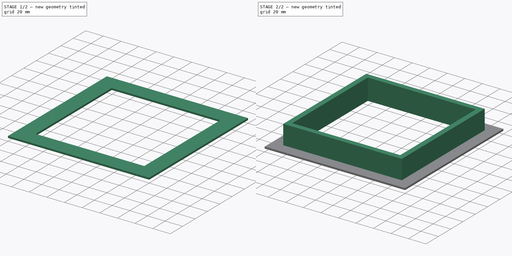
[diagram: build sequence overview — one tinted view per stage of 2, left to right]
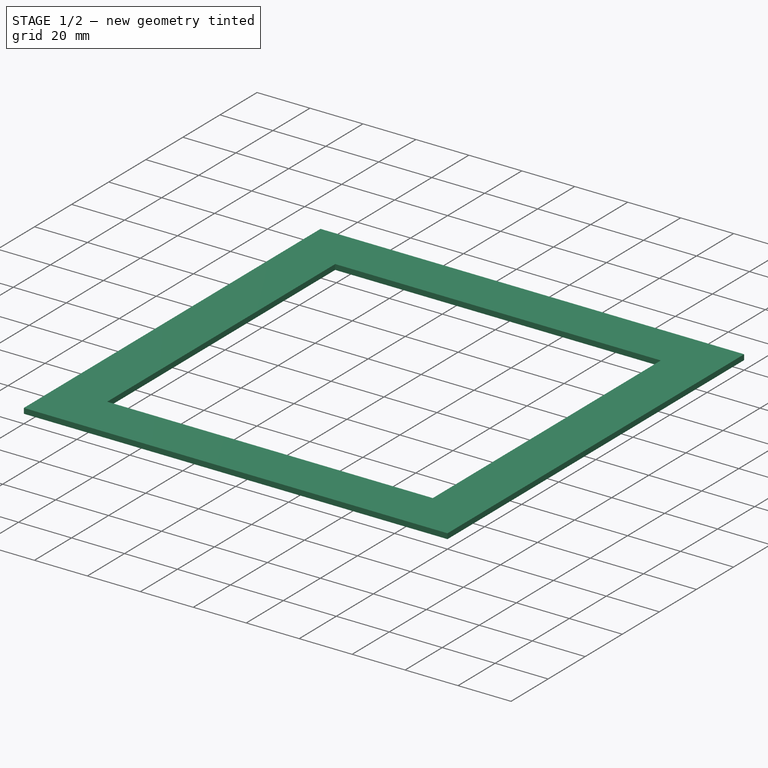
[diagram: stage 1 of 2 — iso view after this stage's code; geometry added in this stage tinted green]
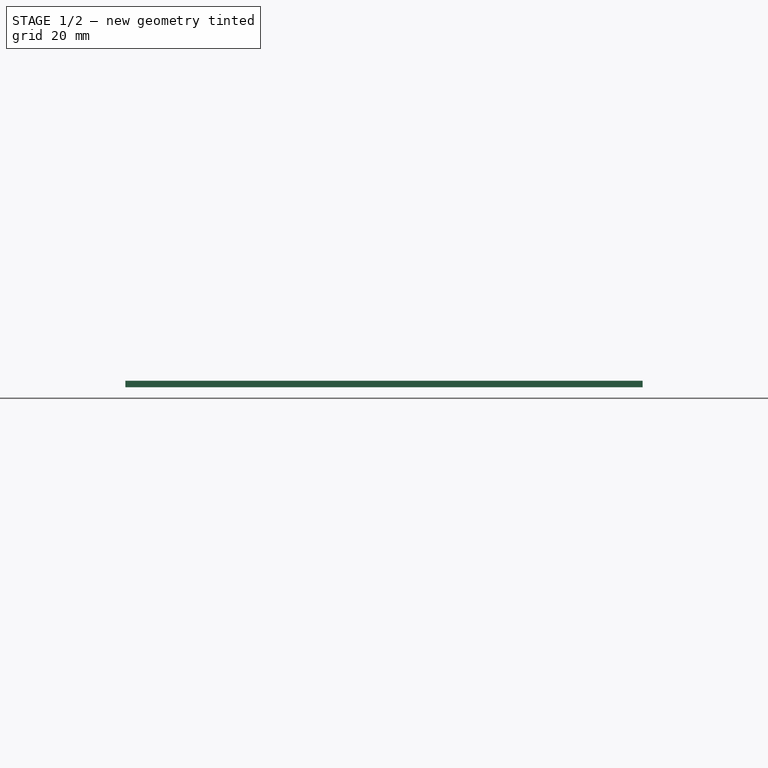
[diagram: stage 1 of 2 — front view after this stage's code; geometry added in this stage tinted green]
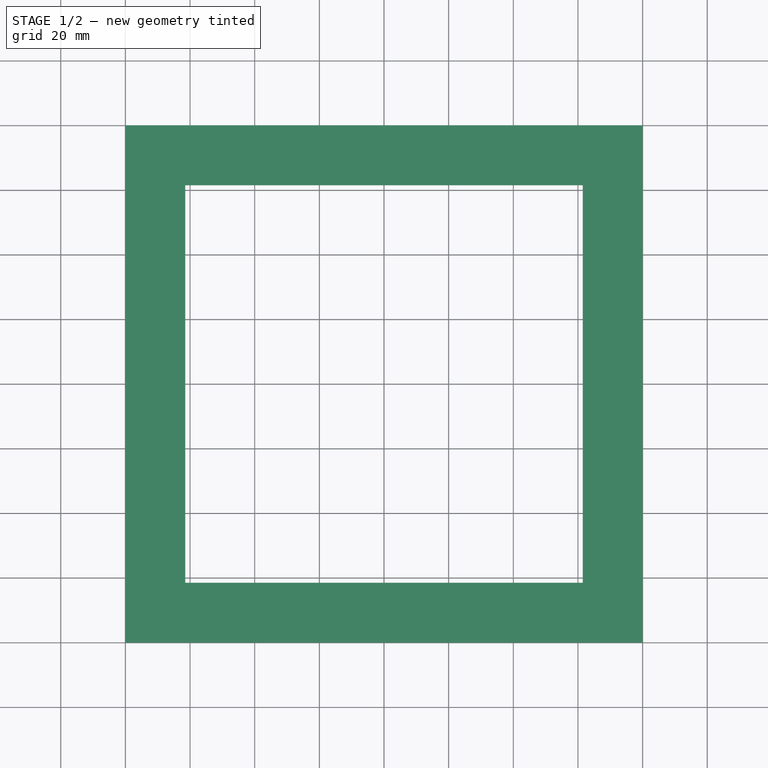
[diagram: stage 1 of 2 — top view after this stage's code; geometry added in this stage tinted green]
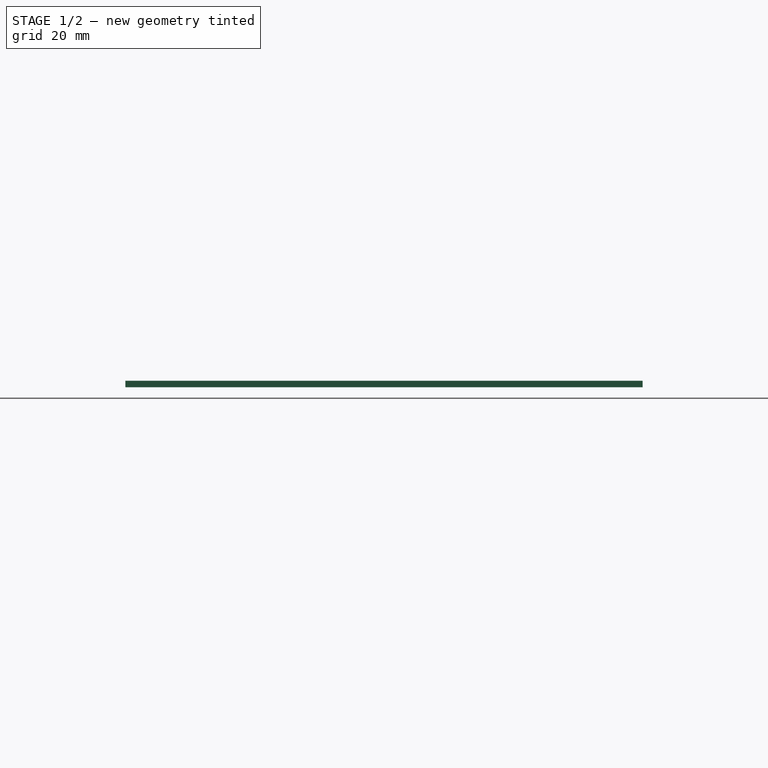
[diagram: stage 1 of 2 — right view after this stage's code; geometry added in this stage tinted green]
FCSTD DOCUMENT  (FreeCAD 0.14R3703 (Git))
Label: base_cristal_lluis
License: CC-BY 3.0
LicenseURL: http://creativecommons.org/licenses/by/3.0/
objects: Sketcher::SketchObject×2, PartDesign::Pad×2, Part::Feature×1
note: 7 computed .brp shape members not serialized (recipe doc carries the construction recipe); baked Part::Feature solids carry a one-line shape summary decoded from their .brp

FEATURE [Sketcher::SketchObject] Sketch
  sketch-geometry (8):
    g0: LineSegment StartX=-80 StartY=80 StartZ=0 EndX=80 EndY=80 EndZ=0
    g1: LineSegment StartX=80 StartY=80 StartZ=0 EndX=80 EndY=-80 EndZ=0
    g2: LineSegment StartX=80 StartY=-80 StartZ=0 EndX=-80 EndY=-80 EndZ=0
    g3: LineSegment StartX=-80 StartY=-80 StartZ=0 EndX=-80 EndY=80 EndZ=0
    g4: LineSegment StartX=-61.5 StartY=61.5 StartZ=0 EndX=61.5 EndY=61.5 EndZ=0
    g5: LineSegment StartX=61.5 StartY=61.5 StartZ=0 EndX=61.5 EndY=-61.5 EndZ=0
    g6: LineSegment StartX=61.5 StartY=-61.5 StartZ=0 EndX=-61.5 EndY=-61.5 EndZ=0
    g7: LineSegment StartX=-61.5 StartY=-61.5 StartZ=0 EndX=-61.5 EndY=61.5 EndZ=0
  constraints (24):
    c: Coincident(g0,g1)
    c: Coincident(g1,g2)
    c: Coincident(g2,g3)
    c: Coincident(g3,g0)
    c: Horizontal(g0)
    c: Horizontal(g2)
    c: Vertical(g1)
    c: Vertical(g3)
    c: Symmetric(g0,g0,g-2)
    c: Symmetric(g0,g1,g-1)
    c: DistanceX(g0,g0) = 160
    c: Equal(g0,g1)
    c: Coincident(g4,g5)
    c: Coincident(g5,g6)
    c: Coincident(g6,g7)
    c: Coincident(g7,g4)
    c: Horizontal(g4)
    c: Horizontal(g6)
    c: Vertical(g5)
    c: Vertical(g7)
    c: Symmetric(g4,g4,g-2)
    c: Symmetric(g4,g5,g-1)
    c: DistanceX(g4,g4) = 123
    c: Equal(g4,g5)
FEATURE [PartDesign::Pad] Pad
  Length = 2
  Length2 = 10
  Sketch = -> Sketch
  Type = 0
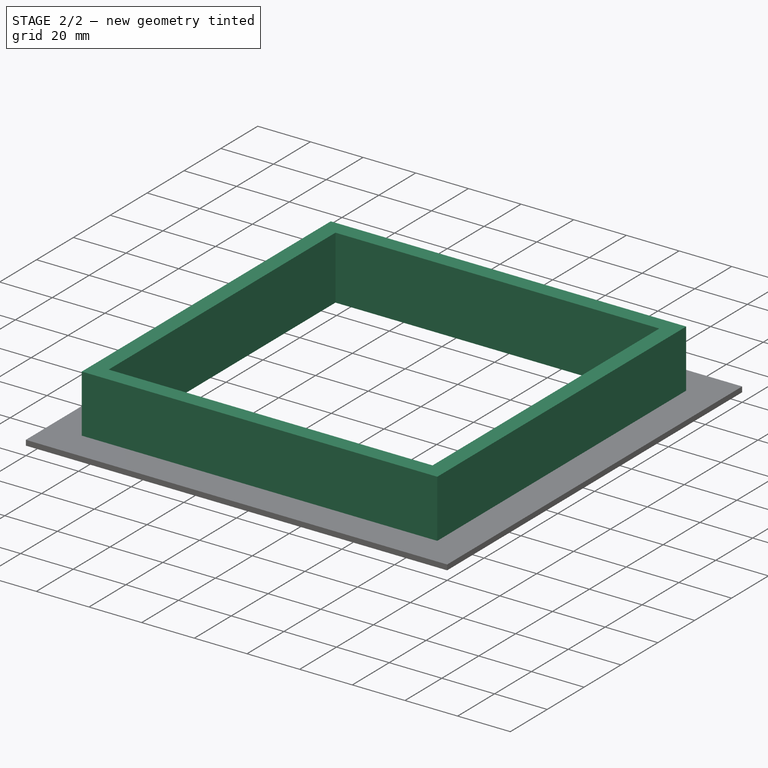
[diagram: stage 2 of 2 — iso view after this stage's code; geometry added in this stage tinted green]
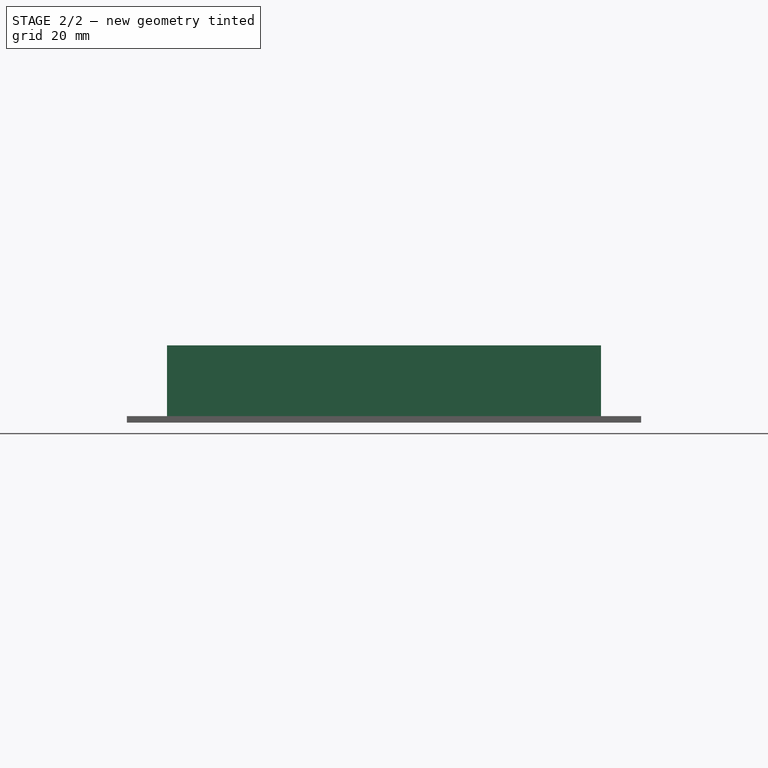
[diagram: stage 2 of 2 — front view after this stage's code; geometry added in this stage tinted green]
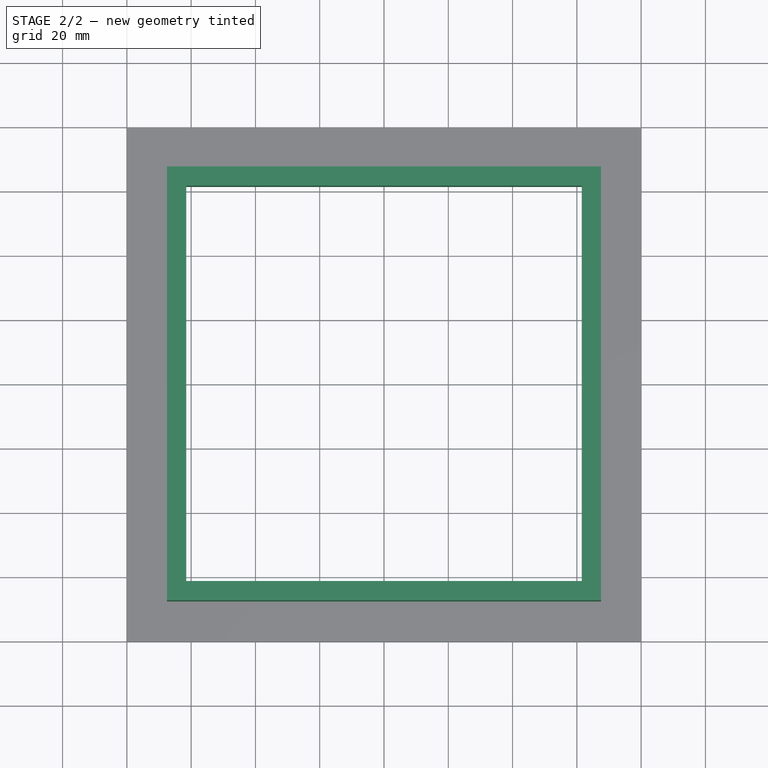
[diagram: stage 2 of 2 — top view after this stage's code; geometry added in this stage tinted green]
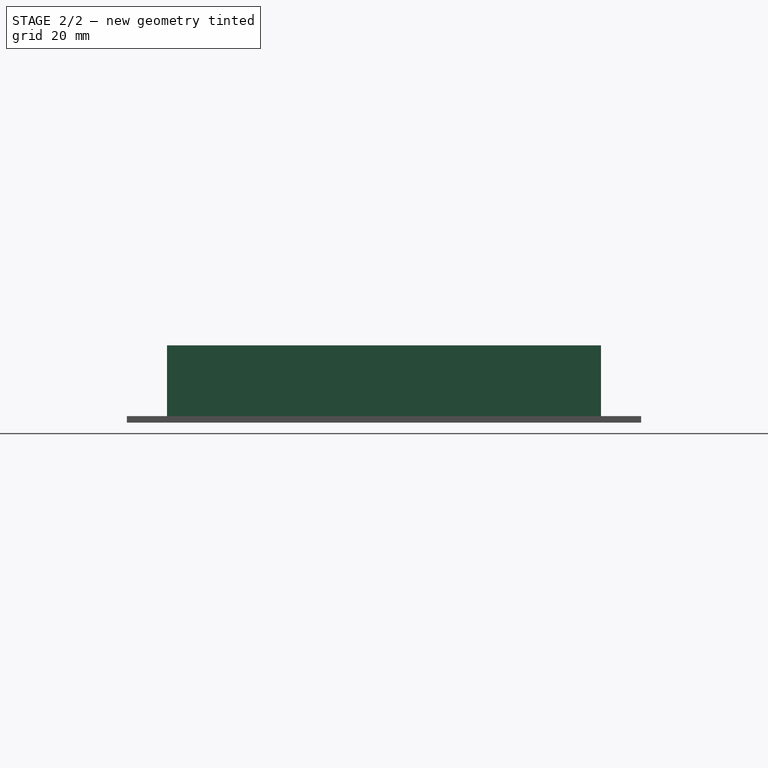
[diagram: stage 2 of 2 — right view after this stage's code; geometry added in this stage tinted green]
FEATURE [Sketcher::SketchObject] Sketch001
  Placement = pos=(0,0,2) rot=(0,0,1;0rad)
  Support = -> Pad [Face10]
  sketch-geometry (8):
    g0: LineSegment StartX=-67.5 StartY=67.5 StartZ=0 EndX=67.5 EndY=67.5 EndZ=0
    g1: LineSegment StartX=67.5 StartY=67.5 StartZ=0 EndX=67.5 EndY=-67.5 EndZ=0
    g2: LineSegment StartX=67.5 StartY=-67.5 StartZ=0 EndX=-67.5 EndY=-67.5 EndZ=0
    g3: LineSegment StartX=-67.5 StartY=-67.5 StartZ=0 EndX=-67.5 EndY=67.5 EndZ=0
    g4: LineSegment StartX=-61.5 StartY=61.5 StartZ=0 EndX=61.5 EndY=61.5 EndZ=0
    g5: LineSegment StartX=61.5 StartY=61.5 StartZ=0 EndX=61.5 EndY=-61.5 EndZ=0
    g6: LineSegment StartX=61.5 StartY=-61.5 StartZ=0 EndX=-61.5 EndY=-61.5 EndZ=0
    g7: LineSegment StartX=-61.5 StartY=-61.5 StartZ=0 EndX=-61.5 EndY=61.5 EndZ=0
  constraints (24):
    c: Coincident(g0,g1)
    c: Coincident(g1,g2)
    c: Coincident(g2,g3)
    c: Coincident(g3,g0)
    c: Horizontal(g0)
    c: Horizontal(g2)
    c: Vertical(g1)
    c: Vertical(g3)
    c: Symmetric(g0,g0,g-2)
    c: Symmetric(g0,g1,g-1)
    c: Equal(g0,g1)
    c: DistanceX(g0,g0) = 135
    c: Coincident(g4,g5)
    c: Coincident(g5,g6)
    c: Coincident(g6,g7)
    c: Coincident(g7,g4)
    c: Horizontal(g4)
    c: Horizontal(g6)
    c: Vertical(g5)
    c: Vertical(g7)
    c: DistanceX(g4,g4) = 123
    c: Symmetric(g4,g4,g-2)
    c: Equal(g4,g5)
    c: Symmetric(g4,g5,g-1)
FEATURE [PartDesign::Pad] Pad001
  Length = 22
  Length2 = 10
  Sketch = -> Sketch001
  Type = 0
FEATURE [Part::Feature] Pad001001  label="base_cubeta_cristal"
  shape: bbox 160 x 160 x 24 mm, 15 faces (baked)
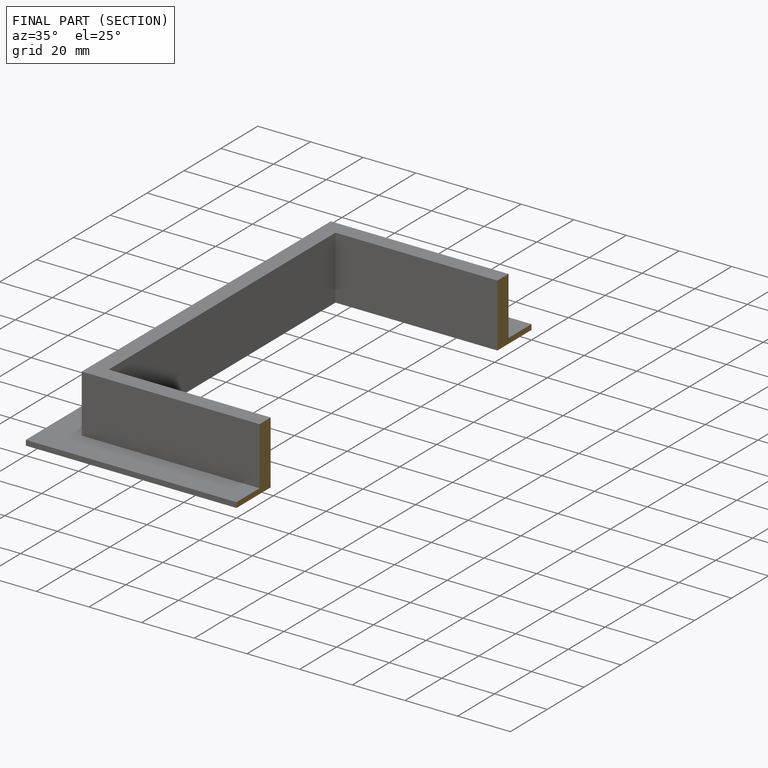
[diagram: finished part — half-section view (interior)]
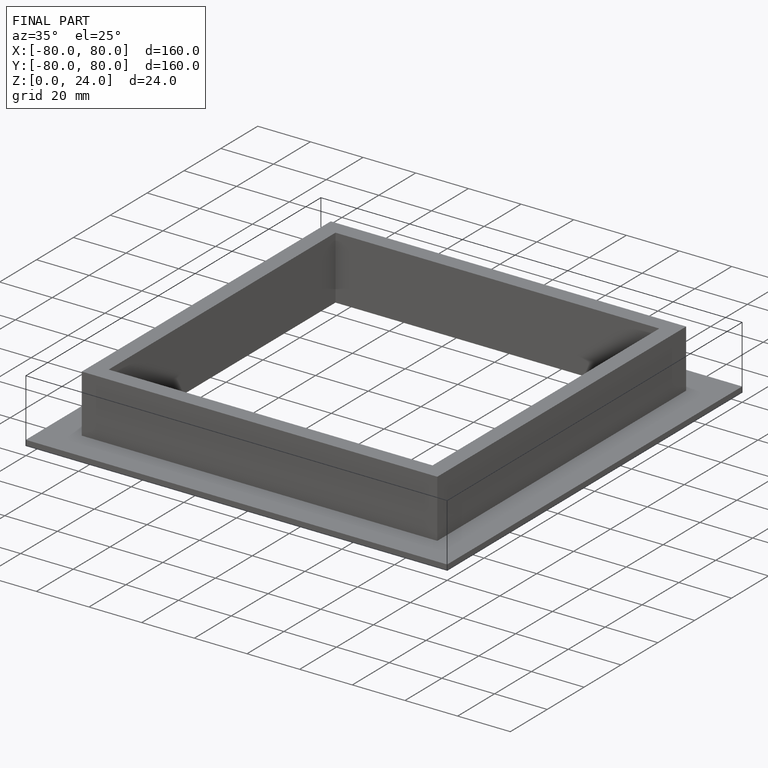
[diagram: finished part — iso view with bounding-box wireframe]
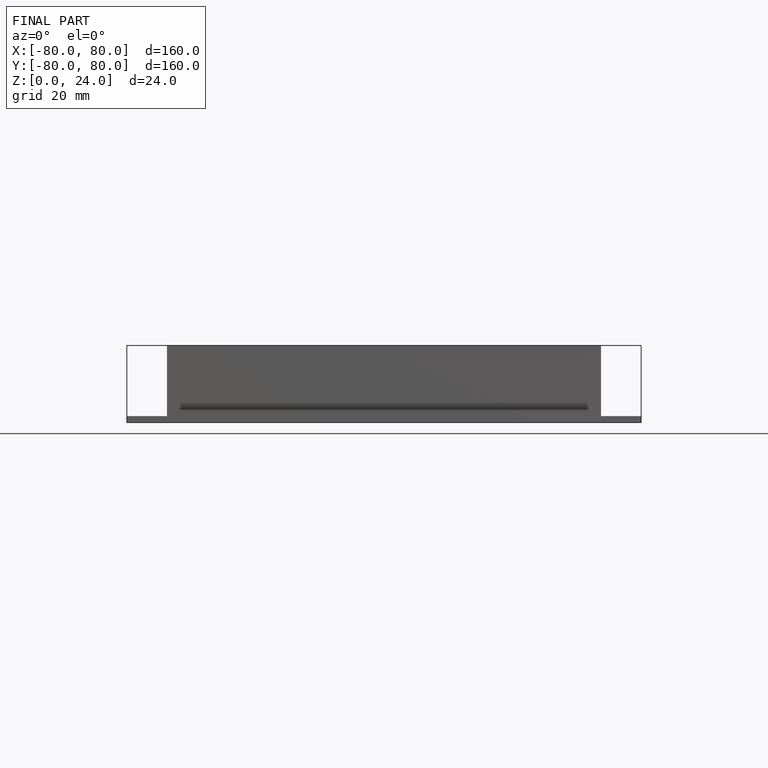
[diagram: finished part — front view with bounding-box wireframe]
